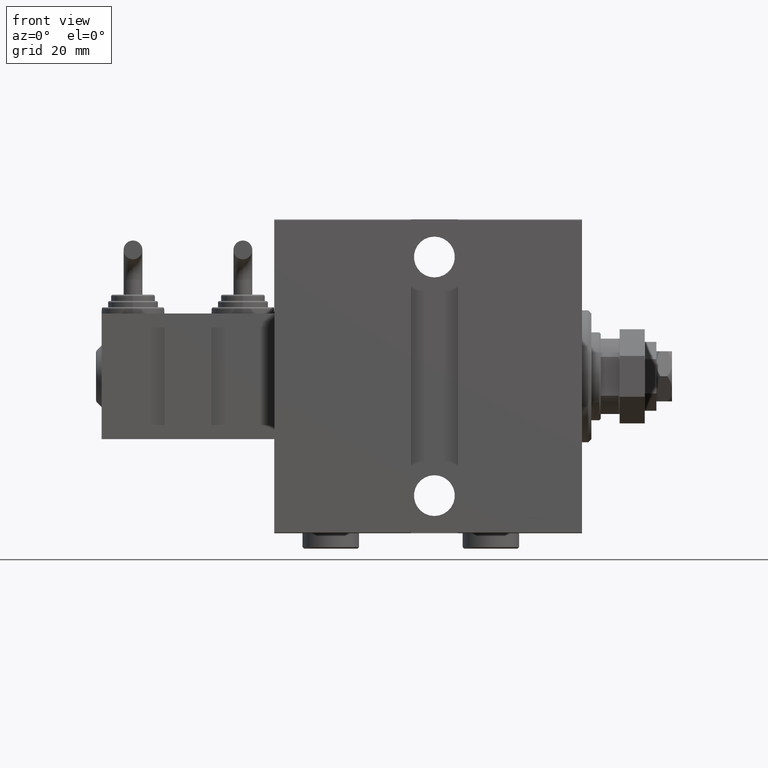
[diagram: clean part render]
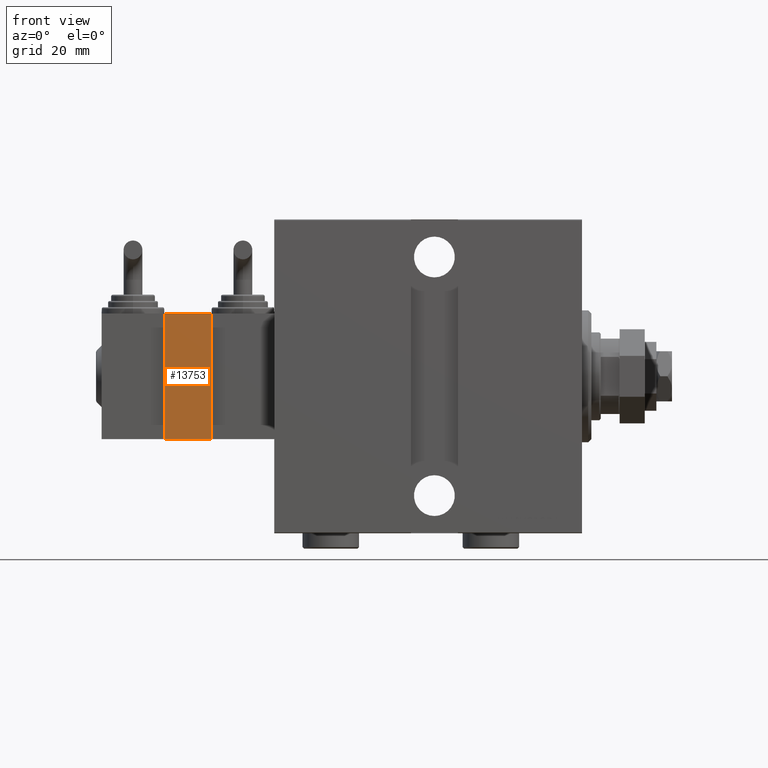
[diagram: same view with one face highlighted and labeled with its STEP entity id]
A machine part, front view. The second image highlights one B-rep face of the part: STEP entity #13753.
In plain terms, the highlighted planar face has unit normal (0, 1, 0).
Its self-contained STEP definition (entity closure, byte-faithful):
#1230 = DIRECTION ( 'NONE',  ( 1.000000000000000000, 0.000000000000000000, 0.000000000000000000 ) ) ;
#2604 = VERTEX_POINT ( 'NONE', #46752 ) ;
#3549 = CARTESIAN_POINT ( 'NONE',  ( -19.99999999999999289, -22.00000000000000000, 15.00000000000000000 ) ) ;
#4502 = LINE ( 'NONE', #27676, #34062 ) ;
#5407 = PLANE ( 'NONE',  #17964 ) ;
#6905 = ORIENTED_EDGE ( 'NONE', *, *, #44439, .F. ) ;
#7410 = EDGE_CURVE ( 'NONE', #2604, #30520, #4502, .T. ) ;
#7427 = LINE ( 'NONE', #15245, #17152 ) ;
#8687 = CARTESIAN_POINT ( 'NONE',  ( -19.99999999999999289, -22.00000000000000000, 15.00000000000000000 ) ) ;
#9670 = ORIENTED_EDGE ( 'NONE', *, *, #37239, .F. ) ;
#12572 = EDGE_CURVE ( 'NONE', #42686, #2604, #7427, .T. ) ;
#13753 = ADVANCED_FACE ( 'NONE', ( #31850 ), #5407, .F. ) ;
#14231 = VERTEX_POINT ( 'NONE', #49104 ) ;
#15245 = CARTESIAN_POINT ( 'NONE',  ( -19.99999999999999289, -22.00000000000000000, 15.00000000000000000 ) ) ;
#16764 = CARTESIAN_POINT ( 'NONE',  ( 20.00000000000000000, -22.00000000000000000, 0.000000000000000000 ) ) ;
#17152 = VECTOR ( 'NONE', #30076, 1000.000000000000000 ) ;
#17964 = AXIS2_PLACEMENT_3D ( 'NONE', #20783, #36115, #24812 ) ;
#19261 = DIRECTION ( 'NONE',  ( -0.000000000000000000, -0.000000000000000000, -1.000000000000000000 ) ) ;
#20568 = EDGE_LOOP ( 'NONE', ( #43321, #9670, #6905, #45761 ) ) ;
#20783 = CARTESIAN_POINT ( 'NONE',  ( -19.99999999999999289, -22.00000000000000000, 15.00000000000000000 ) ) ;
#24812 = DIRECTION ( 'NONE',  ( 0.000000000000000000, -0.000000000000000000, 1.000000000000000000 ) ) ;
#27676 = CARTESIAN_POINT ( 'NONE',  ( -19.99999999999999289, -22.00000000000000000, 0.000000000000000000 ) ) ;
#30076 = DIRECTION ( 'NONE',  ( -0.000000000000000000, -0.000000000000000000, -1.000000000000000000 ) ) ;
#30520 = VERTEX_POINT ( 'NONE', #16764 ) ;
#31850 = FACE_OUTER_BOUND ( 'NONE', #20568, .T. ) ;
#32080 = LINE ( 'NONE', #8687, #32952 ) ;
#32952 = VECTOR ( 'NONE', #47180, 1000.000000000000000 ) ;
#34062 = VECTOR ( 'NONE', #1230, 1000.000000000000000 ) ;
#35601 = CARTESIAN_POINT ( 'NONE',  ( 20.00000000000000000, -22.00000000000000000, 15.00000000000000000 ) ) ;
#36115 = DIRECTION ( 'NONE',  ( 0.000000000000000000, 1.000000000000000000, 0.000000000000000000 ) ) ;
#37239 = EDGE_CURVE ( 'NONE', #14231, #30520, #38361, .T. ) ;
#38361 = LINE ( 'NONE', #35601, #48377 ) ;
#42686 = VERTEX_POINT ( 'NONE', #3549 ) ;
#43321 = ORIENTED_EDGE ( 'NONE', *, *, #7410, .T. ) ;
#44439 = EDGE_CURVE ( 'NONE', #42686, #14231, #32080, .T. ) ;
#45761 = ORIENTED_EDGE ( 'NONE', *, *, #12572, .T. ) ;
#46752 = CARTESIAN_POINT ( 'NONE',  ( -19.99999999999999289, -22.00000000000000000, 0.000000000000000000 ) ) ;
#47180 = DIRECTION ( 'NONE',  ( 1.000000000000000000, 0.000000000000000000, 0.000000000000000000 ) ) ;
#48377 = VECTOR ( 'NONE', #19261, 1000.000000000000000 ) ;
#49104 = CARTESIAN_POINT ( 'NONE',  ( 20.00000000000000000, -22.00000000000000000, 15.00000000000000000 ) ) ;